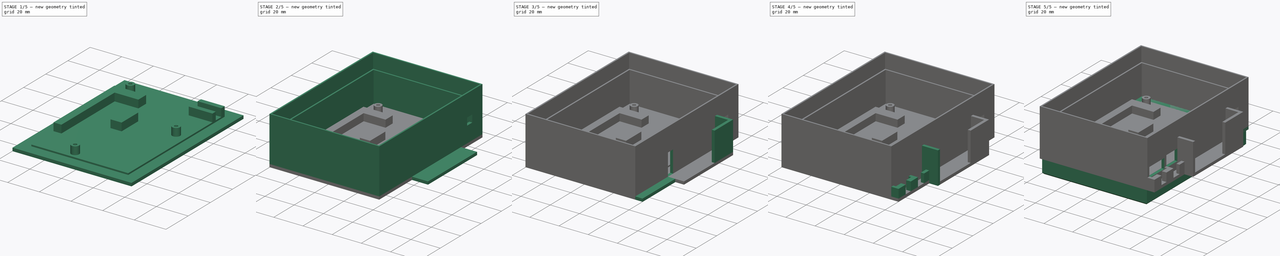
[diagram: build sequence overview — one tinted view per stage of 5, left to right]
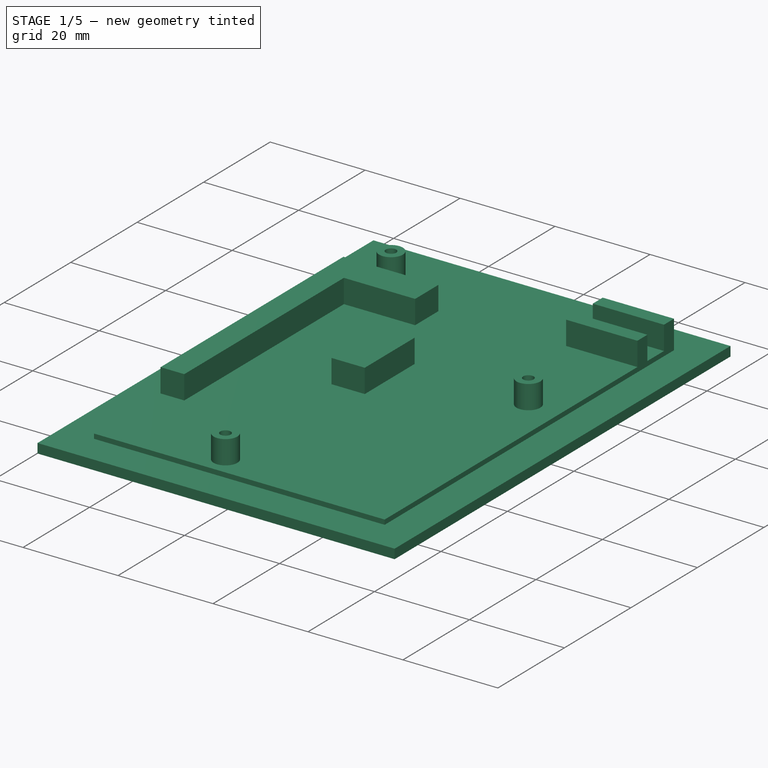
[diagram: stage 1 of 5 — iso view after this stage's code; geometry added in this stage tinted green]
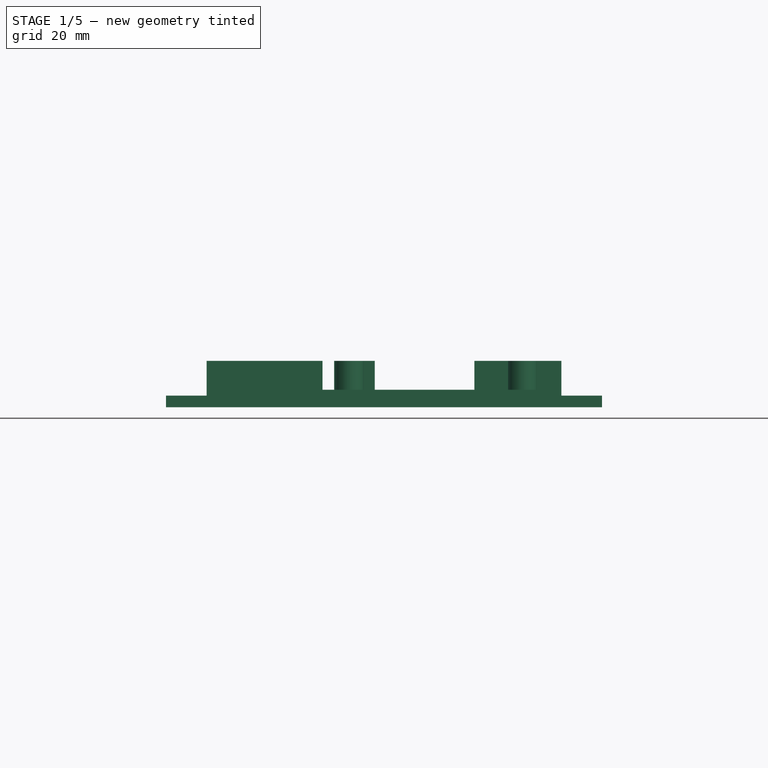
[diagram: stage 1 of 5 — front view after this stage's code; geometry added in this stage tinted green]
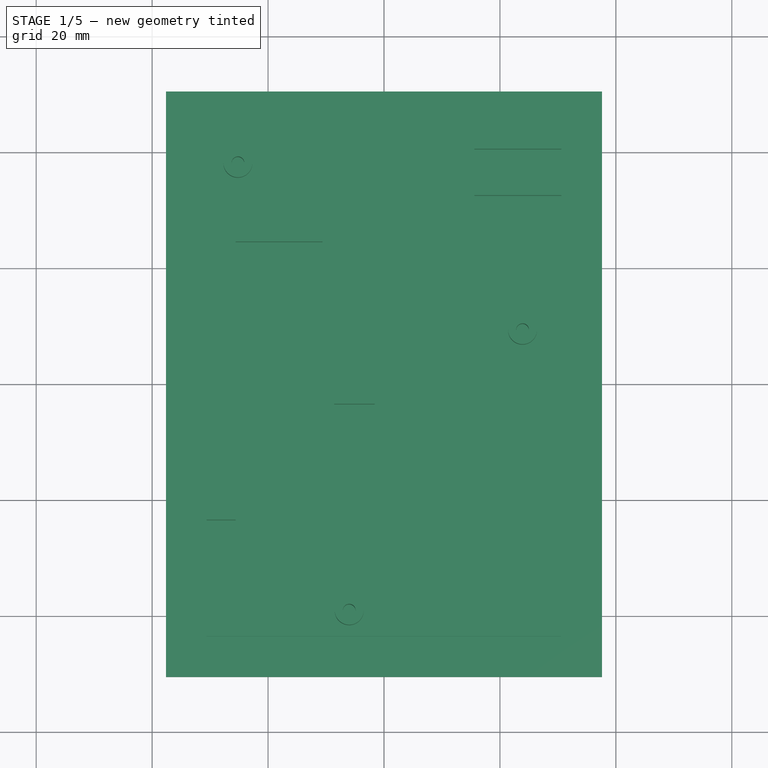
[diagram: stage 1 of 5 — top view after this stage's code; geometry added in this stage tinted green]
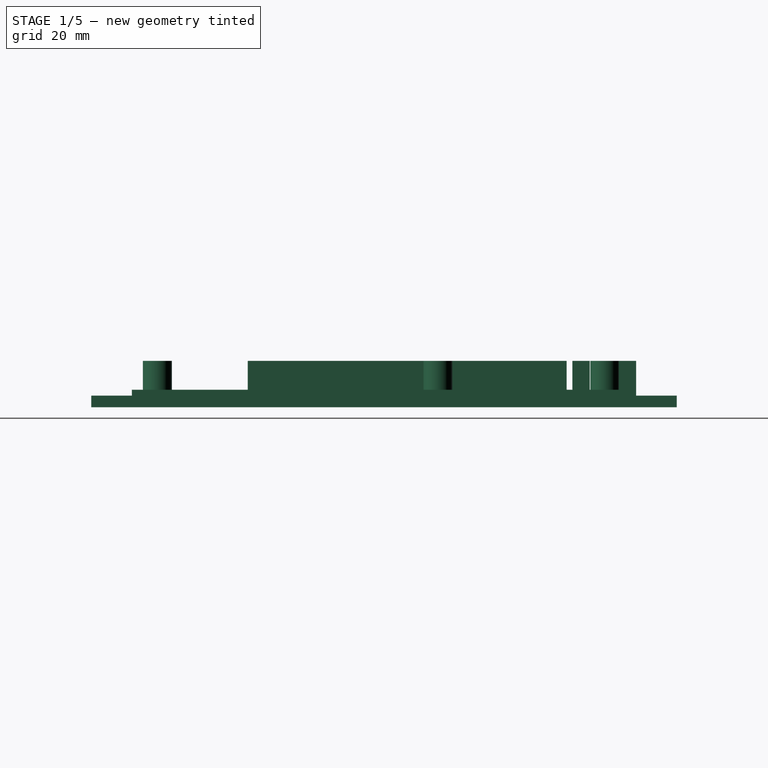
[diagram: stage 1 of 5 — right view after this stage's code; geometry added in this stage tinted green]
FCSTD DOCUMENT  (FreeCAD 0.18.4R)
Label: box-co2-hum-temp-tvoc
License: All rights reserved
LicenseURL: http://en.wikipedia.org/wiki/All_rights_reserved
objects: Sketcher::SketchObject×19, PartDesign::Pad×12, PartDesign::Pocket×7, PartDesign::Body×2, PartDesign::Chamfer×1
note: 60 computed .brp shape members not serialized (recipe doc carries the construction recipe); baked Part::Feature solids carry a one-line shape summary decoded from their .brp

FEATURE [Sketcher::SketchObject] Sketch018
  MapMode = 5
  Support = -> [XY_Plane002]
  sketch-geometry (4):
    g0: LineSegment StartX=-37.6 StartY=50.5 StartZ=0 EndX=37.6 EndY=50.5 EndZ=0
    g1: LineSegment StartX=37.6 StartY=50.5 StartZ=0 EndX=37.6 EndY=-50.5 EndZ=0
    g2: LineSegment StartX=37.6 StartY=-50.5 StartZ=0 EndX=-37.6 EndY=-50.5 EndZ=0
    g3: LineSegment StartX=-37.6 StartY=-50.5 StartZ=0 EndX=-37.6 EndY=50.5 EndZ=0
  constraints (11):
    c: Coincident(g0,g1)
    c: Coincident(g1,g2)
    c: Coincident(g2,g3)
    c: Coincident(g3,g0)
    c: Horizontal(g0)
    c: Horizontal(g2)
    c: Vertical(g1)
    c: Vertical(g3)
    c: DistanceY(g1,g1) = 101
    c: DistanceX(g0,g0) = 75.2
    c: Symmetric(g2,g0,g-1)
FEATURE [PartDesign::Pad] Pad009
  Length = 2
  Length2 = 100
  Profile = -> Sketch018
  Type = 0
FEATURE [Sketcher::SketchObject] Sketch019
  MapMode = 5
  Placement = pos=(0,0,2) rot=(0,0,1;0rad)
  Support = -> [Pad009]
  sketch-geometry (4):
    g0: LineSegment StartX=-30.6 StartY=43.5 StartZ=0 EndX=30.6 EndY=43.5 EndZ=0
    g1: LineSegment StartX=30.6 StartY=43.5 StartZ=0 EndX=30.6 EndY=-43.5 EndZ=0
    g2: LineSegment StartX=30.6 StartY=-43.5 StartZ=0 EndX=-30.6 EndY=-43.5 EndZ=0
    g3: LineSegment StartX=-30.6 StartY=-43.5 StartZ=0 EndX=-30.6 EndY=43.5 EndZ=0
  constraints (11):
    c: Coincident(g0,g1)
    c: Coincident(g1,g2)
    c: Coincident(g2,g3)
    c: Coincident(g3,g0)
    c: Horizontal(g0)
    c: Horizontal(g2)
    c: Vertical(g1)
    c: Vertical(g3)
    c: Symmetric(g2,g0,g-1)
    c: DistanceY(g1,g1) = 87
    c: DistanceX(g0,g0) = 61.2
FEATURE [PartDesign::Pad] Pad010
  BaseFeature = -> Pad009
  Length = 1
  Length2 = 100
  Profile = -> Sketch019
  Type = 0
FEATURE [Sketcher::SketchObject] Sketch020
  ExternalGeometry = -> [Pad010]
  MapMode = 5
  Placement = pos=(0,0,3) rot=(0,0,1;0rad)
  Support = -> [Pad010]
  sketch-geometry (21):
    g0: Circle CenterX=-25.2 CenterY=38.1 CenterZ=0 NormalX=0 NormalY=0 NormalZ=1 AngleXU=0 Radius=2.5
    g1: LineSegment StartX=15.6 StartY=43.5 StartZ=0 EndX=30.6 EndY=43.5 EndZ=0
    g2: LineSegment StartX=30.6 StartY=43.5 StartZ=0 EndX=30.6 EndY=40.5 EndZ=0
    g3: LineSegment StartX=30.6 StartY=40.5 StartZ=0 EndX=15.6 EndY=40.5 EndZ=0
    g4: LineSegment StartX=15.6 StartY=40.5 StartZ=0 EndX=15.6 EndY=43.5 EndZ=0
    g5: LineSegment StartX=15.6 StartY=35.5 StartZ=0 EndX=30.6 EndY=35.5 EndZ=0
    g6: LineSegment StartX=30.6 StartY=35.5 StartZ=0 EndX=30.6 EndY=32.5 EndZ=0
    g7: LineSegment StartX=30.6 StartY=32.5 StartZ=0 EndX=15.6 EndY=32.5 EndZ=0
    g8: LineSegment StartX=15.6 StartY=32.5 StartZ=0 EndX=15.6 EndY=35.5 EndZ=0
    g9: LineSegment StartX=-8.6 StartY=11.5 StartZ=0 EndX=-1.6 EndY=11.5 EndZ=0
    g10: LineSegment StartX=-1.6 StartY=11.5 StartZ=0 EndX=-1.6 EndY=-3.5 EndZ=0
    g11: LineSegment StartX=-1.6 StartY=-3.5 StartZ=0 EndX=-8.6 EndY=-3.5 EndZ=0
    g12: LineSegment StartX=-8.6 StartY=-3.5 StartZ=0 EndX=-8.6 EndY=11.5 EndZ=0
    g13: Circle CenterX=23.9 CenterY=9.3 CenterZ=0 NormalX=0 NormalY=0 NormalZ=1 AngleXU=0 Radius=2.5
    g14: LineSegment StartX=-30.6 StartY=-23.5 StartZ=0 EndX=-30.6 EndY=31.5 EndZ=0
    g15: LineSegment StartX=-30.6 StartY=31.5 StartZ=0 EndX=-10.6 EndY=31.5 EndZ=0
    g16: LineSegment StartX=-10.6 StartY=31.5 StartZ=0 EndX=-10.6 EndY=24.5 EndZ=0
    g17: LineSegment StartX=-10.6 StartY=24.5 StartZ=0 EndX=-25.6 EndY=24.5 EndZ=0
    g18: LineSegment StartX=-25.6 StartY=24.5 StartZ=0 EndX=-25.6 EndY=-23.5 EndZ=0
    g19: LineSegment StartX=-25.6 StartY=-23.5 StartZ=0 EndX=-30.6 EndY=-23.5 EndZ=0
    g20: Circle CenterX=-6 CenterY=-39.1 CenterZ=0 NormalX=0 NormalY=0 NormalZ=1 AngleXU=0 Radius=2.5
  constraints (62):
    c: Coincident(g1,g2)
    c: Coincident(g2,g3)
    c: Coincident(g3,g4)
    c: Coincident(g4,g1)
    c: Horizontal(g1)
    c: Horizontal(g3)
    c: Vertical(g2)
    c: Vertical(g4)
    c: Coincident(g5,g6)
    c: Coincident(g6,g7)
    c: Coincident(g7,g8)
    c: Coincident(g8,g5)
    c: Horizontal(g5)
    c: Horizontal(g7)
    c: Vertical(g6)
    c: Vertical(g8)
    c: Coincident(g9,g10)
    c: Coincident(g10,g11)
    c: Coincident(g11,g12)
    c: Coincident(g12,g9)
    c: Horizontal(g9)
    c: Horizontal(g11)
    c: Vertical(g10)
    c: Vertical(g12)
    c: Vertical(g14)
    c: Coincident(g14,g15)
    c: Horizontal(g15)
    c: Coincident(g15,g16)
    c: Vertical(g16)
    c: Coincident(g16,g17)
    c: Horizontal(g17)
    c: Coincident(g17,g18)
    c: Vertical(g18)
    c: Coincident(g18,g19)
    c: Coincident(g19,g14)
    c: Horizontal(g19)
    c: Coincident(g1,g-4)
    c: PointOnObject(g5,g-4)
    c: DistanceX(g1,g1) = 15
    c: DistanceX(g5,g5) = 15
    c: DistanceY(g2,g2) = 3
    c: DistanceY(g6,g6) = 3
    c: DistanceY(g5,g1) = 8
    c: Diameter(g0) = 5
    c: DistanceY(g0,g-3) = 5.4
    c: DistanceX(g-3,g0) = 5.4
    c: PointOnObject(g14,g-5)
    c: DistanceX(g15,g15) = 20
    c: DistanceY(g16,g16) = 7
    c: DistanceX(g19,g19) = 5
    c: DistanceY(g14,g-5) = 12
    c: DistanceX(g9,g9) = 7
    c: DistanceX(g-5,g9) = 22
    c: DistanceY(g10,g10) = 15
    c: DistanceY(g9,g-5) = 32
    c: Diameter(g13) = 5
    c: DistanceX(g-5,g13) = 54.5
    c: DistanceY(g13,g-5) = 34.2
    c: DistanceY(g14,g14) = 55
    c: Diameter(g20) = 5
    c: DistanceX(g-5,g20) = 24.6
    c: DistanceY(g20,g-5) = 82.6
FEATURE [PartDesign::Pad] Pad011
  BaseFeature = -> Pad010
  Length = 5
  Length2 = 100
  Profile = -> Sketch020
  Type = 0
FEATURE [Sketcher::SketchObject] Sketch021
  ExternalGeometry = -> [Pad011]
  MapMode = 5
  Placement = pos=(0,0,8) rot=(0,0,1;0rad)
  Support = -> [Pad011]
  sketch-geometry (3):
    g0: Circle CenterX=-6 CenterY=-39.1 CenterZ=0 NormalX=0 NormalY=0 NormalZ=1 AngleXU=0 Radius=1.1
    g1: Circle CenterX=-25.2 CenterY=38.1 CenterZ=0 NormalX=0 NormalY=0 NormalZ=1 AngleXU=0 Radius=1.1
    g2: Circle CenterX=23.9 CenterY=9.3 CenterZ=0 NormalX=0 NormalY=0 NormalZ=1 AngleXU=0 Radius=1.1
  constraints (6):
    c: Coincident(g0,g-4)
    c: Coincident(g1,g-3)
    c: Coincident(g2,g-5)
    c: Diameter(g2) = 2.2
    c: Diameter(g0) = 2.2
    c: Diameter(g1) = 2.2
FEATURE [PartDesign::Pocket] Pocket006
  BaseFeature = -> Pad011
  Length = 7
  Length2 = 100
  Profile = -> Sketch021
  Type = 0
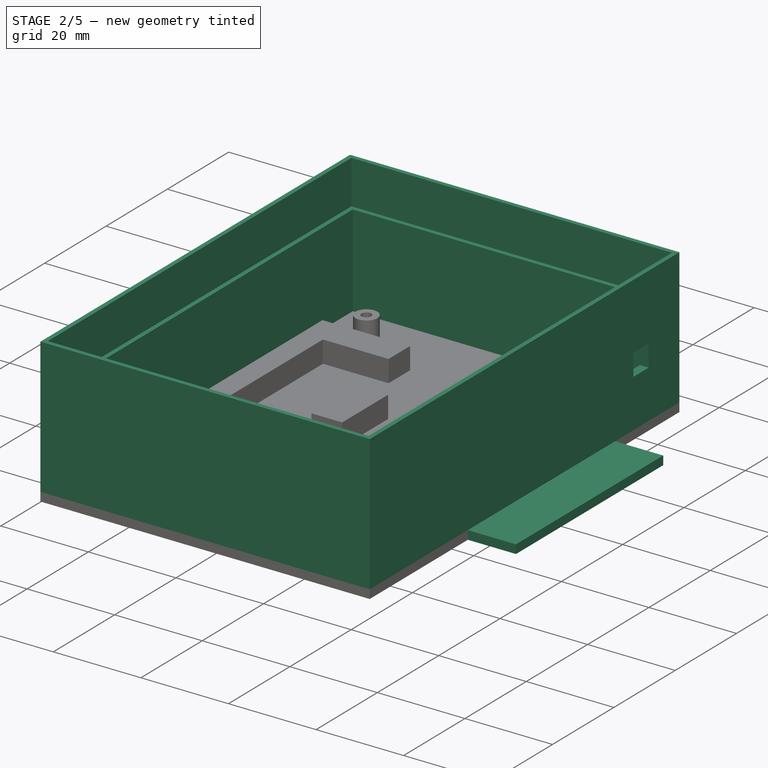
[diagram: stage 2 of 5 — iso view after this stage's code; geometry added in this stage tinted green]
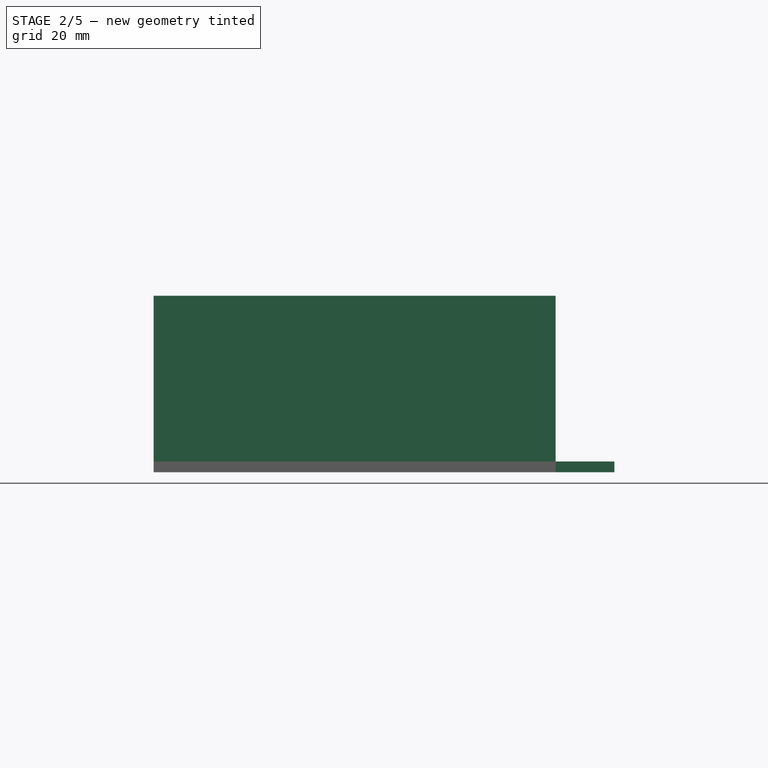
[diagram: stage 2 of 5 — front view after this stage's code; geometry added in this stage tinted green]
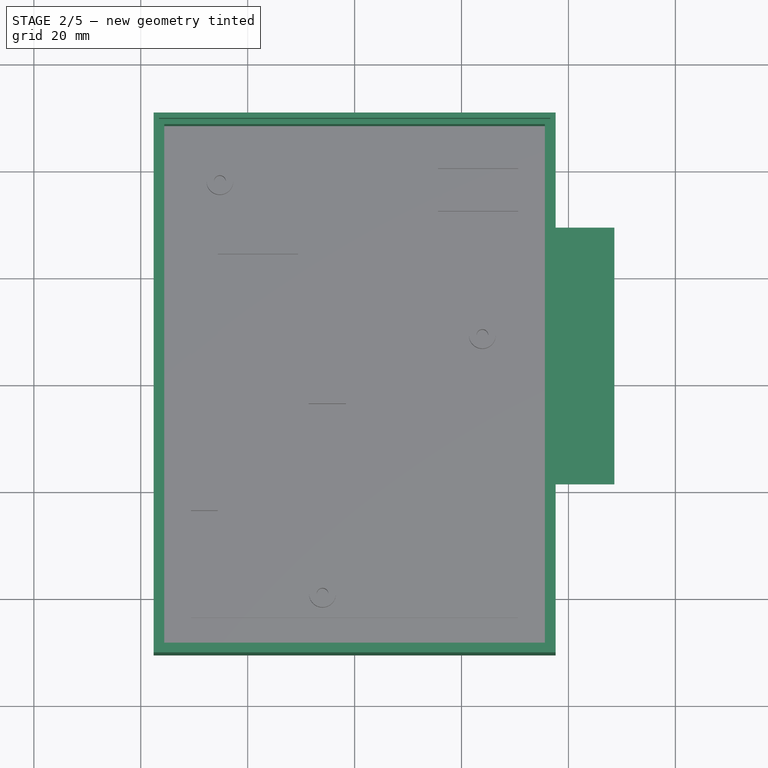
[diagram: stage 2 of 5 — top view after this stage's code; geometry added in this stage tinted green]
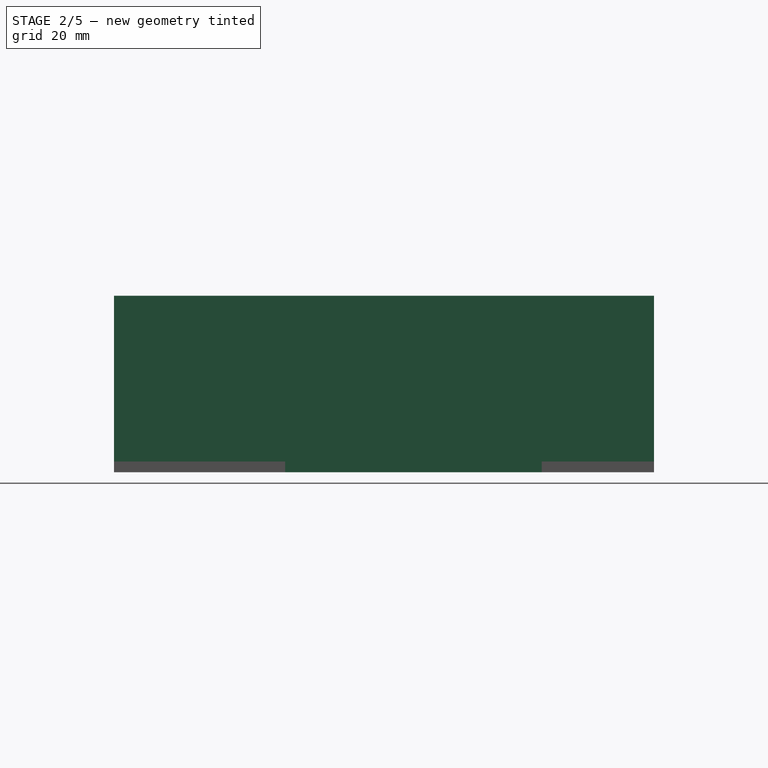
[diagram: stage 2 of 5 — right view after this stage's code; geometry added in this stage tinted green]
FEATURE [Sketcher::SketchObject] Sketch022
  ExternalGeometry = -> [Pocket006]
  MapMode = 5
  Placement = pos=(0,0,2) rot=(0,0,1;0rad)
  Support = -> [Pocket006]
  sketch-geometry (8):
    g0: LineSegment StartX=-37.6 StartY=50.5 StartZ=0 EndX=37.6 EndY=50.5 EndZ=0
    g1: LineSegment StartX=37.6 StartY=50.5 StartZ=0 EndX=37.6 EndY=-50.5 EndZ=0
    g2: LineSegment StartX=37.6 StartY=-50.5 StartZ=0 EndX=-37.6 EndY=-50.5 EndZ=0
    g3: LineSegment StartX=-37.6 StartY=-50.5 StartZ=0 EndX=-37.6 EndY=50.5 EndZ=0
    g4: LineSegment StartX=-35.6 StartY=48.5 StartZ=0 EndX=35.6 EndY=48.5 EndZ=0
    g5: LineSegment StartX=35.6 StartY=48.5 StartZ=0 EndX=35.6 EndY=-48.5 EndZ=0
    g6: LineSegment StartX=35.6 StartY=-48.5 StartZ=0 EndX=-35.6 EndY=-48.5 EndZ=0
    g7: LineSegment StartX=-35.6 StartY=-48.5 StartZ=0 EndX=-35.6 EndY=48.5 EndZ=0
  constraints (22):
    c: Coincident(g0,g1)
    c: Coincident(g1,g2)
    c: Coincident(g2,g3)
    c: Coincident(g3,g0)
    c: Horizontal(g0)
    c: Horizontal(g2)
    c: Vertical(g1)
    c: Vertical(g3)
    c: Coincident(g0,g-3)
    c: Coincident(g1,g-4)
    c: Coincident(g4,g5)
    c: Coincident(g5,g6)
    c: Coincident(g6,g7)
    c: Coincident(g7,g4)
    c: Horizontal(g4)
    c: Horizontal(g6)
    c: Vertical(g5)
    c: Vertical(g7)
    c: DistanceX(g0,g4) = 2
    c: DistanceX(g5,g1) = 2
    c: DistanceY(g4,g0) = 2
    c: DistanceY(g1,g5) = 2
FEATURE [PartDesign::Pad] Pad012
  BaseFeature = -> Pocket006
  Length = 31
  Length2 = 100
  Profile = -> Sketch022
  Type = 0
FEATURE [Sketcher::SketchObject] Sketch023
  ExternalGeometry = -> [Pad012]
  MapMode = 5
  Placement = pos=(37.6,0,0) rot=(0.57735,0.57735,0.57735;2.0944rad)
  Support = -> [Pad012]
  sketch-geometry (4):
    g0: LineSegment StartX=35.5 StartY=18 StartZ=0 EndX=40.5 EndY=18 EndZ=0
    g1: LineSegment StartX=40.5 StartY=18 StartZ=0 EndX=40.5 EndY=13 EndZ=0
    g2: LineSegment StartX=40.5 StartY=13 StartZ=0 EndX=35.5 EndY=13 EndZ=0
    g3: LineSegment StartX=35.5 StartY=13 StartZ=0 EndX=35.5 EndY=18 EndZ=0
  constraints (12):
    c: Coincident(g0,g1)
    c: Coincident(g1,g2)
    c: Coincident(g2,g3)
    c: Coincident(g3,g0)
    c: Horizontal(g0)
    c: Horizontal(g2)
    c: Vertical(g1)
    c: Vertical(g3)
    c: DistanceX(g0,g0) = 5
    c: DistanceY(g1,g1) = 5
    c: DistanceX(g0,g-3) = 10
    c: DistanceY(g0,g-3) = 15
FEATURE [PartDesign::Pocket] Pocket007
  BaseFeature = -> Pad012
  Length = 2
  Length2 = 100
  Profile = -> Sketch023
  Type = 0
FEATURE [PartDesign::Body] Body  label="cup"
  Group = -> [Sketch,Pad,Sketch041,Pad020,Chamfer]
  Origin = -> Origin
  Placement = pos=(0,0,33) rot=(0,0,1;0rad)
  Tip = -> Chamfer
FEATURE [Sketcher::SketchObject] Sketch042
  ExternalGeometry = -> [Pocket007]
  MapMode = 5
  Placement = pos=(0,0,33) rot=(0,0,1;0rad)
  Support = -> [Pocket007]
  sketch-geometry (4):
    g0: LineSegment StartX=-36.6 StartY=49.5 StartZ=0 EndX=36.6 EndY=49.5 EndZ=0
    g1: LineSegment StartX=36.6 StartY=49.5 StartZ=0 EndX=36.6 EndY=-49.5 EndZ=0
    g2: LineSegment StartX=36.6 StartY=-49.5 StartZ=0 EndX=-36.6 EndY=-49.5 EndZ=0
    g3: LineSegment StartX=-36.6 StartY=-49.5 StartZ=0 EndX=-36.6 EndY=49.5 EndZ=0
  constraints (12):
    c: Coincident(g0,g1)
    c: Coincident(g1,g2)
    c: Coincident(g2,g3)
    c: Coincident(g3,g0)
    c: Horizontal(g0)
    c: Horizontal(g2)
    c: Vertical(g1)
    c: Vertical(g3)
    c: DistanceY(g-4,g1) = 1
    c: DistanceX(g1,g-4) = 1
    c: DistanceX(g-3,g0) = 1
    c: DistanceY(g0,g-3) = 1
FEATURE [PartDesign::Pocket] Pocket
  BaseFeature = -> Pocket007
  Length = 10
  Length2 = 100
  Profile = -> Sketch042
  Type = 0
FEATURE [Sketcher::SketchObject] Sketch043
  ExternalGeometry = -> [Pocket]
  MapMode = 5
  Placement = pos=(37.6,0,0) rot=(0.57735,0.57735,0.57735;2.0944rad)
  Support = -> [Pocket]
  sketch-geometry (4):
    g0: LineSegment StartX=29.5 StartY=0 StartZ=0 EndX=-18.5 EndY=0 EndZ=0
    g1: LineSegment StartX=-18.5 StartY=0 StartZ=0 EndX=-18.5 EndY=2 EndZ=0
    g2: LineSegment StartX=-18.5 StartY=2 StartZ=0 EndX=29.5 EndY=2 EndZ=0
    g3: LineSegment StartX=29.5 StartY=2 StartZ=0 EndX=29.5 EndY=0 EndZ=0
  constraints (12):
    c: Coincident(g0,g1)
    c: Coincident(g1,g2)
    c: Coincident(g2,g3)
    c: Coincident(g3,g0)
    c: Horizontal(g0)
    c: Horizontal(g2)
    c: Vertical(g1)
    c: Vertical(g3)
    c: PointOnObject(g0,g-1)
    c: PointOnObject(g1,g-3)
    c: DistanceX(g2,g2) = 48
    c: DistanceX(g-3,g1) = 32
FEATURE [PartDesign::Pad] Pad021  label="co2"
  BaseFeature = -> Pocket
  Length = 11
  Length2 = 100
  Profile = -> Sketch043
  Type = 0
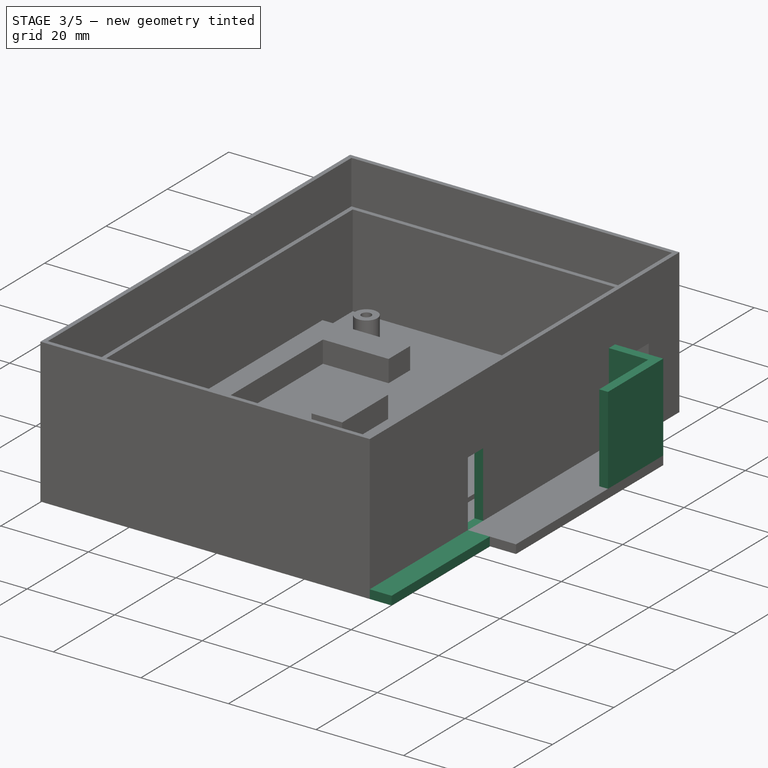
[diagram: stage 3 of 5 — iso view after this stage's code; geometry added in this stage tinted green]
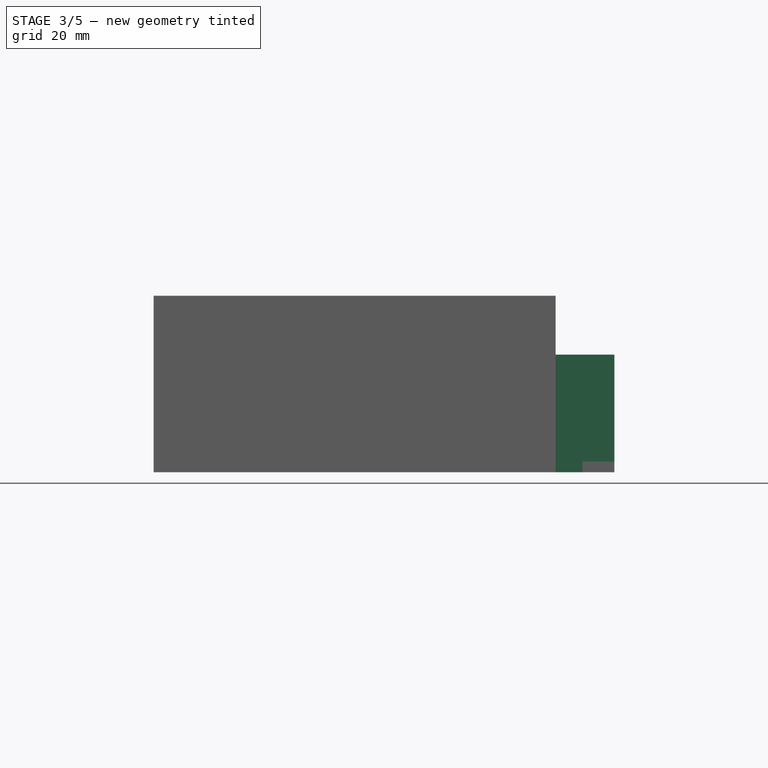
[diagram: stage 3 of 5 — front view after this stage's code; geometry added in this stage tinted green]
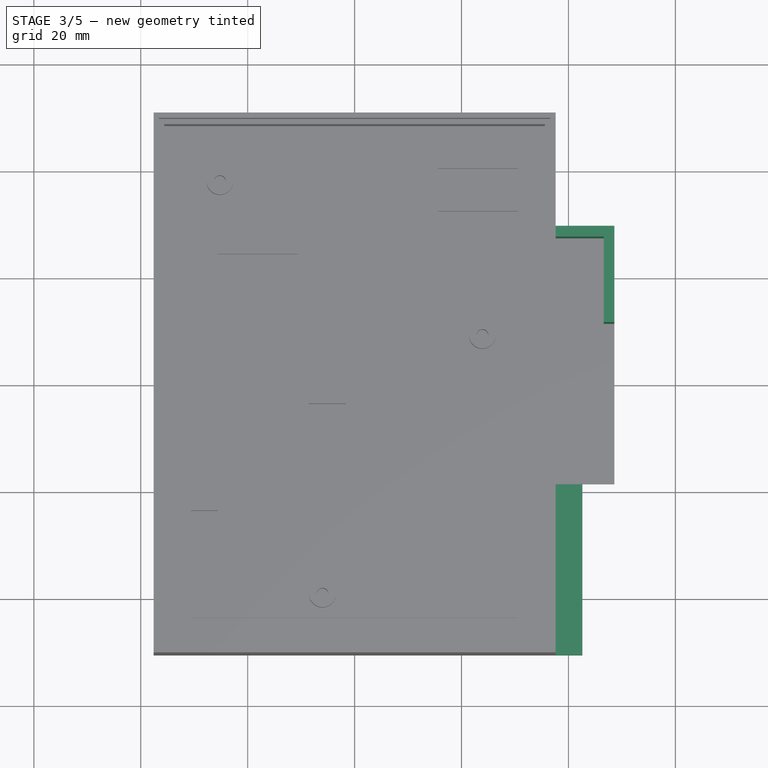
[diagram: stage 3 of 5 — top view after this stage's code; geometry added in this stage tinted green]
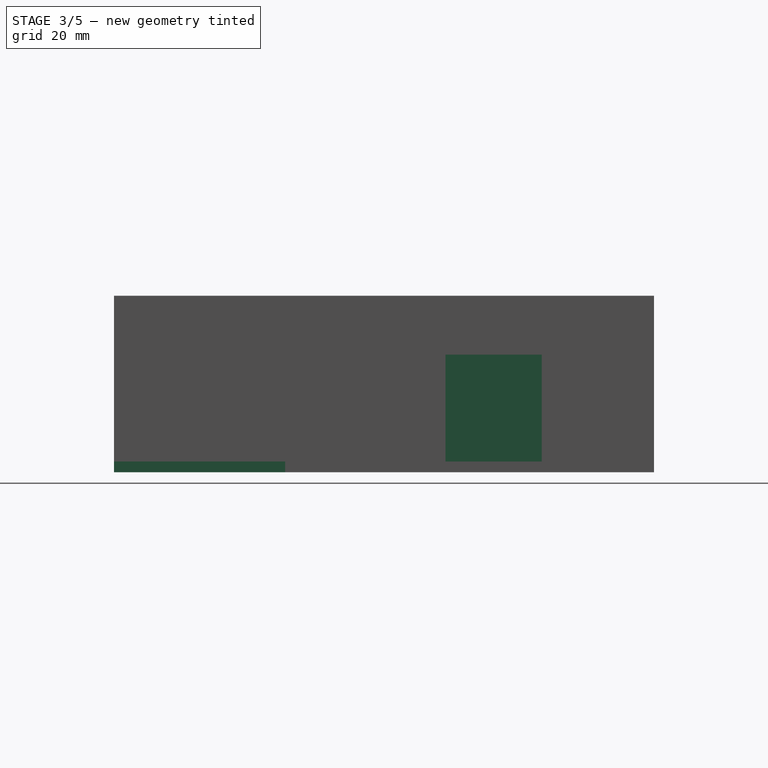
[diagram: stage 3 of 5 — right view after this stage's code; geometry added in this stage tinted green]
FEATURE [Sketcher::SketchObject] Sketch044
  ExternalGeometry = -> [Pad021]
  MapMode = 5
  Placement = pos=(0,0,2) rot=(0,0,1;0rad)
  Support = -> [Pad021]
  sketch-geometry (6):
    g0: LineSegment StartX=37.6 StartY=29.5 StartZ=0 EndX=48.6 EndY=29.5 EndZ=0
    g1: LineSegment StartX=48.6 StartY=29.5 StartZ=0 EndX=48.6 EndY=-18.5 EndZ=0
    g2: LineSegment StartX=48.6 StartY=-18.5 StartZ=0 EndX=46.6 EndY=-18.5 EndZ=0
    g3: LineSegment StartX=46.6 StartY=-18.5 StartZ=0 EndX=46.6 EndY=27.5 EndZ=0
    g4: LineSegment StartX=46.6 StartY=27.5 StartZ=0 EndX=37.6 EndY=27.5 EndZ=0
    g5: LineSegment StartX=37.6 StartY=27.5 StartZ=0 EndX=37.6 EndY=29.5 EndZ=0
  constraints (15):
    c: Coincident(g-3,g0)
    c: Coincident(g0,g-4)
    c: Coincident(g0,g1)
    c: Coincident(g1,g2)
    c: Horizontal(g2)
    c: Coincident(g2,g3)
    c: Vertical(g3)
    c: Coincident(g3,g4)
    c: Horizontal(g4)
    c: Coincident(g4,g5)
    c: Coincident(g5,g0)
    c: Vertical(g5)
    c: DistanceY(g5,g5) = 2
    c: DistanceX(g2,g2) = 2
    c: Coincident(g-5,g1)
FEATURE [PartDesign::Pad] Pad022
  BaseFeature = -> Pad021
  Length = 20
  Length2 = 100
  Profile = -> Sketch044
  Type = 0
FEATURE [Sketcher::SketchObject] Sketch045
  ExternalGeometry = -> [Pad022]
  MapMode = 5
  Placement = pos=(0,0,22) rot=(0,0,1;0rad)
  Support = -> [Pad022]
  sketch-geometry (4):
    g0: LineSegment StartX=48.6 StartY=-18.5 StartZ=0 EndX=46.6 EndY=-18.5 EndZ=0
    g1: LineSegment StartX=46.6 StartY=-18.5 StartZ=0 EndX=46.6 EndY=11.5 EndZ=0
    g2: LineSegment StartX=46.6 StartY=11.5 StartZ=0 EndX=48.6 EndY=11.5 EndZ=0
    g3: LineSegment StartX=48.6 StartY=11.5 StartZ=0 EndX=48.6 EndY=-18.5 EndZ=0
  constraints (11):
    c: Coincident(g0,g1)
    c: Coincident(g1,g2)
    c: Coincident(g2,g3)
    c: Coincident(g3,g0)
    c: Horizontal(g0)
    c: Horizontal(g2)
    c: Vertical(g1)
    c: Vertical(g3)
    c: Coincident(g0,g-4)
    c: PointOnObject(g1,g-3)
    c: DistanceY(g1,g-3) = 16
FEATURE [PartDesign::Pocket] Pocket008
  BaseFeature = -> Pad022
  Length = 20
  Length2 = 100
  Profile = -> Sketch045
  Type = 0
FEATURE [Sketcher::SketchObject] Sketch046
  ExternalGeometry = -> [Pocket008]
  MapMode = 5
  Placement = pos=(37.6,0,0) rot=(0.57735,0.57735,0.57735;2.0944rad)
  Support = -> [Pocket008]
  sketch-geometry (4):
    g0: LineSegment StartX=-18.5 StartY=2 StartZ=0 EndX=-13.5 EndY=2 EndZ=0
    g1: LineSegment StartX=-13.5 StartY=2 StartZ=0 EndX=-13.5 EndY=17 EndZ=0
    g2: LineSegment StartX=-13.5 StartY=17 StartZ=0 EndX=-18.5 EndY=17 EndZ=0
    g3: LineSegment StartX=-18.5 StartY=17 StartZ=0 EndX=-18.5 EndY=2 EndZ=0
  constraints (11):
    c: Coincident(g0,g1)
    c: Coincident(g1,g2)
    c: Coincident(g2,g3)
    c: Coincident(g3,g0)
    c: Horizontal(g0)
    c: Horizontal(g2)
    c: Vertical(g1)
    c: Vertical(g3)
    c: Coincident(g0,g-3)
    c: DistanceX(g2,g2) = 5
    c: DistanceY(g1,g1) = 15
FEATURE [PartDesign::Pocket] Pocket009
  BaseFeature = -> Pocket008
  Length = 2
  Length2 = 100
  Profile = -> Sketch046
  Type = 0
FEATURE [Sketcher::SketchObject] Sketch047
  ExternalGeometry = -> [Pocket009]
  MapMode = 5
  Placement = pos=(37.6,0,0) rot=(0.57735,0.57735,0.57735;2.0944rad)
  Support = -> [Pocket009]
  sketch-geometry (4):
    g0: LineSegment StartX=-50.5 StartY=2 StartZ=0 EndX=-18.5 EndY=2 EndZ=0
    g1: LineSegment StartX=-18.5 StartY=2 StartZ=0 EndX=-18.5 EndY=0 EndZ=0
    g2: LineSegment StartX=-18.5 StartY=0 StartZ=0 EndX=-50.5 EndY=0 EndZ=0
    g3: LineSegment StartX=-50.5 StartY=0 StartZ=0 EndX=-50.5 EndY=2 EndZ=0
  constraints (10):
    c: Coincident(g0,g1)
    c: Coincident(g1,g2)
    c: Coincident(g2,g3)
    c: Coincident(g3,g0)
    c: Horizontal(g0)
    c: Horizontal(g2)
    c: Vertical(g1)
    c: Vertical(g3)
    c: Coincident(g0,g-4)
    c: Coincident(g1,g-3)
FEATURE [PartDesign::Pad] Pad023  label="tvoc and temperature"
  BaseFeature = -> Pocket009
  Length = 5
  Length2 = 100
  Profile = -> Sketch047
  Type = 0
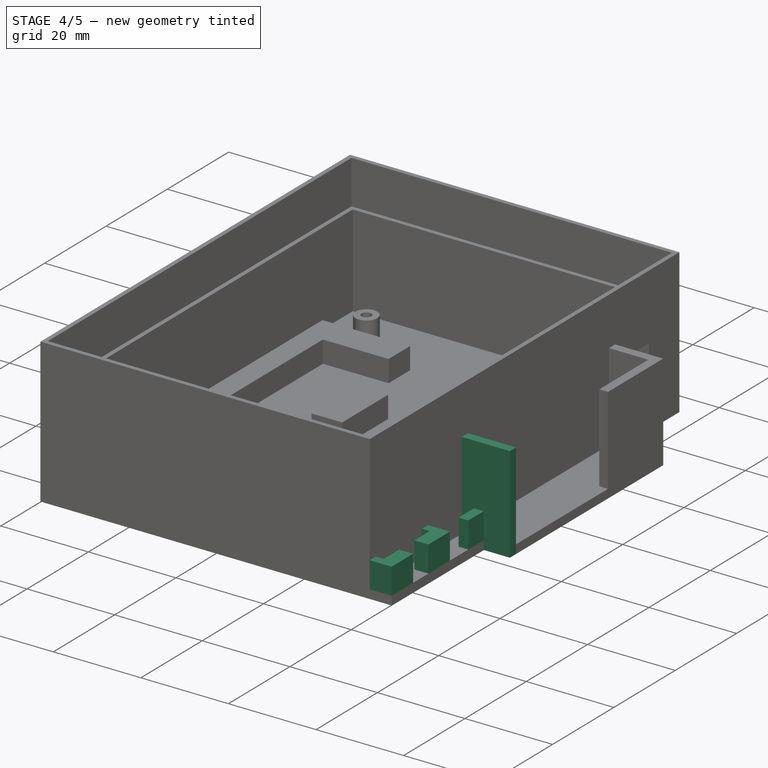
[diagram: stage 4 of 5 — iso view after this stage's code; geometry added in this stage tinted green]
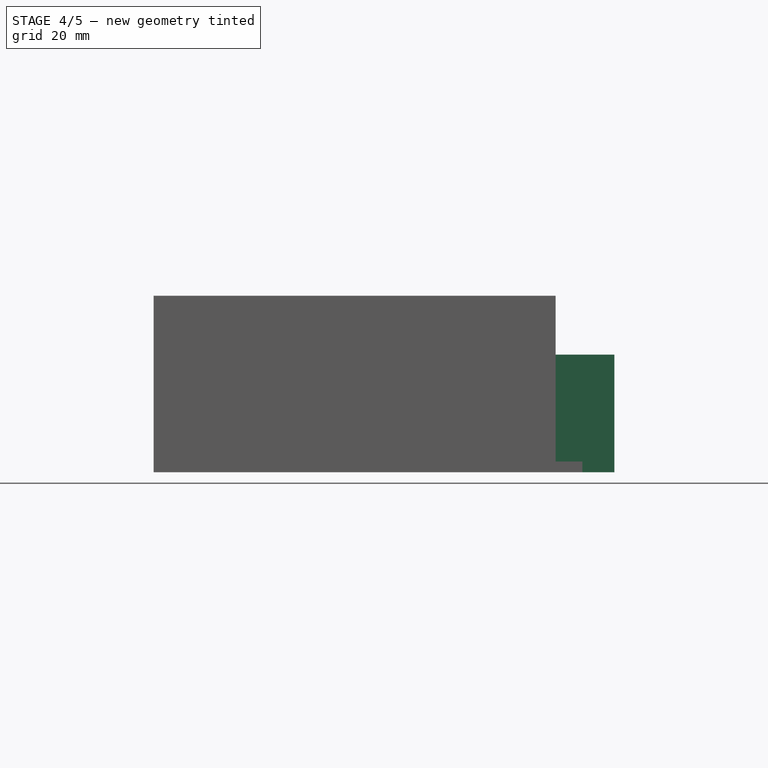
[diagram: stage 4 of 5 — front view after this stage's code; geometry added in this stage tinted green]
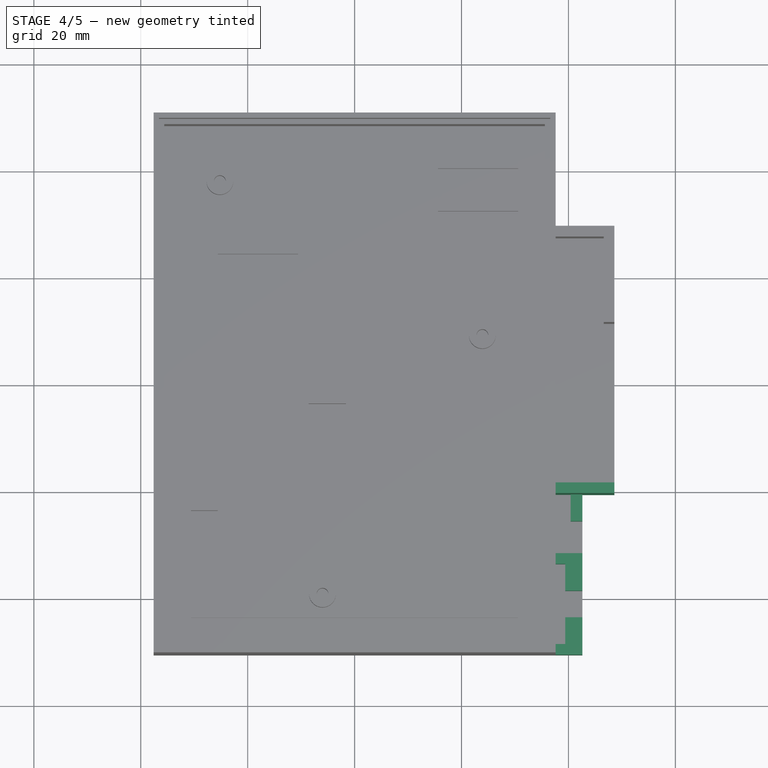
[diagram: stage 4 of 5 — top view after this stage's code; geometry added in this stage tinted green]
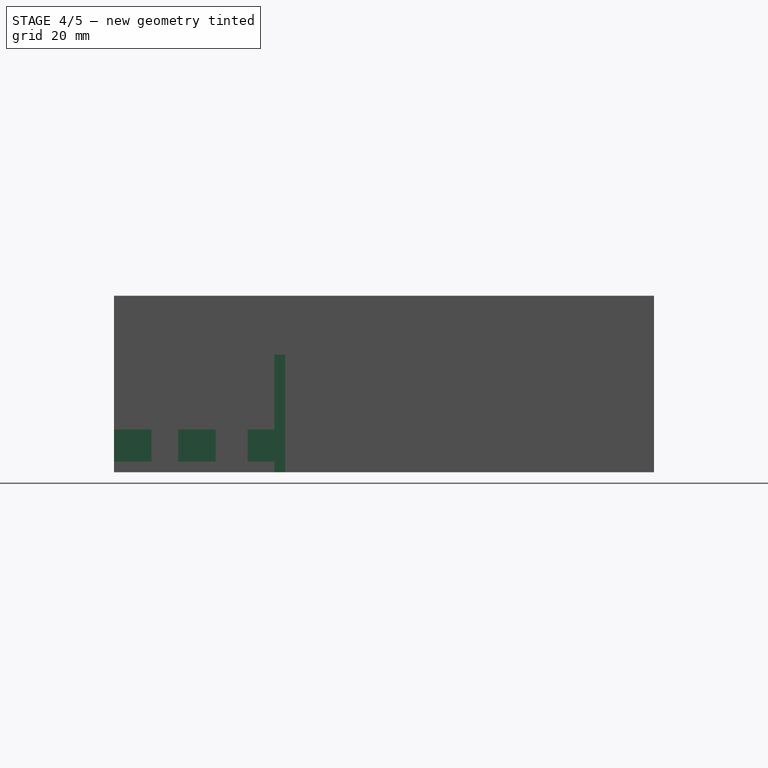
[diagram: stage 4 of 5 — right view after this stage's code; geometry added in this stage tinted green]
FEATURE [Sketcher::SketchObject] Sketch048
  ExternalGeometry = -> [Pad023]
  MapMode = 5
  Placement = pos=(42.6,0,0) rot=(0.57735,0.57735,0.57735;2.0944rad)
  Support = -> [Pad023]
  sketch-geometry (4):
    g0: LineSegment StartX=-18.5 StartY=2 StartZ=0 EndX=-20.5 EndY=2 EndZ=0
    g1: LineSegment StartX=-20.5 StartY=2 StartZ=0 EndX=-20.5 EndY=0 EndZ=0
    g2: LineSegment StartX=-20.5 StartY=0 StartZ=0 EndX=-18.5 EndY=0 EndZ=0
    g3: LineSegment StartX=-18.5 StartY=0 StartZ=0 EndX=-18.5 EndY=2 EndZ=0
  constraints (11):
    c: Coincident(g0,g1)
    c: Coincident(g1,g2)
    c: Coincident(g2,g3)
    c: Coincident(g3,g0)
    c: Horizontal(g0)
    c: Horizontal(g2)
    c: Vertical(g1)
    c: Vertical(g3)
    c: Coincident(g0,g-3)
    c: PointOnObject(g1,g-1)
    c: DistanceX(g0,g0) = 2
FEATURE [PartDesign::Pad] Pad024
  BaseFeature = -> Pad023
  Length = 6
  Length2 = 100
  Profile = -> Sketch048
  Type = 0
FEATURE [Sketcher::SketchObject] Sketch049
  ExternalGeometry = -> [Pad024]
  MapMode = 5
  Placement = pos=(0,0,2) rot=(0,0,1;0rad)
  Support = -> [Pad024]
  sketch-geometry (4):
    g0: LineSegment StartX=37.6 StartY=-18.5 StartZ=0 EndX=48.6 EndY=-18.5 EndZ=0
    g1: LineSegment StartX=48.6 StartY=-18.5 StartZ=0 EndX=48.6 EndY=-20.5 EndZ=0
    g2: LineSegment StartX=48.6 StartY=-20.5 StartZ=0 EndX=37.6 EndY=-20.5 EndZ=0
    g3: LineSegment StartX=37.6 StartY=-20.5 StartZ=0 EndX=37.6 EndY=-18.5 EndZ=0
  constraints (10):
    c: Coincident(g0,g1)
    c: Coincident(g1,g2)
    c: Coincident(g2,g3)
    c: Coincident(g3,g0)
    c: Horizontal(g0)
    c: Horizontal(g2)
    c: Vertical(g1)
    c: Vertical(g3)
    c: Coincident(g0,g-4)
    c: Coincident(g1,g-3)
FEATURE [PartDesign::Pad] Pad025
  BaseFeature = -> Pad024
  Length = 20
  Length2 = 100
  Profile = -> Sketch049
  Type = 0
FEATURE [Sketcher::SketchObject] Sketch050
  ExternalGeometry = -> [Pad025]
  MapMode = 5
  Placement = pos=(0,0,2) rot=(0,0,1;0rad)
  Support = -> [Pad025]
  sketch-geometry (10):
    g0: LineSegment StartX=37.6 StartY=-50.5 StartZ=0 EndX=42.6 EndY=-50.5 EndZ=0
    g1: LineSegment StartX=42.6 StartY=-50.5 StartZ=0 EndX=42.6 EndY=-20.5 EndZ=0
    g2: LineSegment StartX=42.6 StartY=-20.5 StartZ=0 EndX=40.4 EndY=-20.5 EndZ=0
    g3: LineSegment StartX=40.4 StartY=-20.5 StartZ=0 EndX=40.4 EndY=-31.5 EndZ=0
    g4: LineSegment StartX=40.4 StartY=-31.5 StartZ=0 EndX=37.6 EndY=-31.5 EndZ=0
    g5: LineSegment StartX=37.6 StartY=-31.5 StartZ=0 EndX=37.6 EndY=-33.5 EndZ=0
    g6: LineSegment StartX=37.6 StartY=-33.5 StartZ=0 EndX=39.4 EndY=-33.5 EndZ=0
    g7: LineSegment StartX=39.4 StartY=-33.5 StartZ=0 EndX=39.4 EndY=-48.5 EndZ=0
    g8: LineSegment StartX=39.4 StartY=-48.5 StartZ=0 EndX=37.6 EndY=-48.5 EndZ=0
    g9: LineSegment StartX=37.6 StartY=-48.5 StartZ=0 EndX=37.6 EndY=-50.5 EndZ=0
  constraints (29):
    c: Coincident(g-6,g0)
    c: Coincident(g0,g-4)
    c: Coincident(g0,g1)
    c: Coincident(g1,g-3)
    c: Coincident(g1,g2)
    c: PointOnObject(g2,g-5)
    c: Coincident(g2,g3)
    c: Vertical(g3)
    c: Coincident(g3,g4)
    c: PointOnObject(g4,g-6)
    c: Horizontal(g4)
    c: Coincident(g4,g5)
    c: PointOnObject(g5,g-6)
    c: Coincident(g5,g6)
    c: Horizontal(g6)
    c: Coincident(g6,g7)
    c: Vertical(g7)
    c: Coincident(g7,g8)
    c: PointOnObject(g8,g-6)
    c: Horizontal(g8)
    c: Coincident(g8,g9)
    c: Coincident(g9,g0)
    c: DistanceY(g5,g5) = 2
    c: DistanceY(g9,g9) = 2
    c: DistanceY(g5,g-6) = 13
    c: DistanceX(g2,g2) = 2.2
    c: DistanceX(g7,g0) = 3.2
    c: DistanceY(g0,g6) = 17
    c: DistanceY(g3,g3) = 11
FEATURE [PartDesign::Pad] Pad026
  BaseFeature = -> Pad025
  Length = 6
  Length2 = 100
  Profile = -> Sketch050
  Type = 0
FEATURE [Sketcher::SketchObject] Sketch051
  ExternalGeometry = -> [Pad026]
  MapMode = 5
  Placement = pos=(0,0,8) rot=(0,0,1;0rad)
  Support = -> [Pad026]
  sketch-geometry (8):
    g0: LineSegment StartX=40.4 StartY=-31.5 StartZ=0 EndX=42.6 EndY=-31.5 EndZ=0
    g1: LineSegment StartX=42.6 StartY=-31.5 StartZ=0 EndX=42.6 EndY=-25.5 EndZ=0
    g2: LineSegment StartX=42.6 StartY=-25.5 StartZ=0 EndX=40.4 EndY=-25.5 EndZ=0
    g3: LineSegment StartX=40.4 StartY=-25.5 StartZ=0 EndX=40.4 EndY=-31.5 EndZ=0
    g4: LineSegment StartX=39.4 StartY=-38.5 StartZ=0 EndX=42.6 EndY=-38.5 EndZ=0
    g5: LineSegment StartX=42.6 StartY=-38.5 StartZ=0 EndX=42.6 EndY=-43.5 EndZ=0
    g6: LineSegment StartX=42.6 StartY=-43.5 StartZ=0 EndX=39.4 EndY=-43.5 EndZ=0
    g7: LineSegment StartX=39.4 StartY=-43.5 StartZ=0 EndX=39.4 EndY=-38.5 EndZ=0
  constraints (25):
    c: Coincident(g0,g1)
    c: Coincident(g1,g2)
    c: Coincident(g2,g3)
    c: Coincident(g3,g0)
    c: Horizontal(g0)
    c: Horizontal(g2)
    c: Vertical(g1)
    c: Vertical(g3)
    c: Coincident(g0,g-3)
    c: PointOnObject(g1,g-5)
    c: Coincident(g4,g5)
    c: Coincident(g5,g6)
    c: Coincident(g6,g7)
    c: Coincident(g7,g4)
    c: Horizontal(g4)
    c: Horizontal(g6)
    c: Vertical(g5)
    c: Vertical(g7)
    c: PointOnObject(g4,g-4)
    c: PointOnObject(g5,g-5)
    c: DistanceY(g1,g1) = 6
    c: DistanceY(g5,g5) = 5
    c: DistanceY(g-4,g6) = 5
    c: DistanceY(g-4,g-4) = 15
    c: DistanceY(g0,g-3) = 11
FEATURE [PartDesign::Pocket] Pocket010
  BaseFeature = -> Pad026
  Length = 6
  Length2 = 100
  Profile = -> Sketch051
  Type = 0
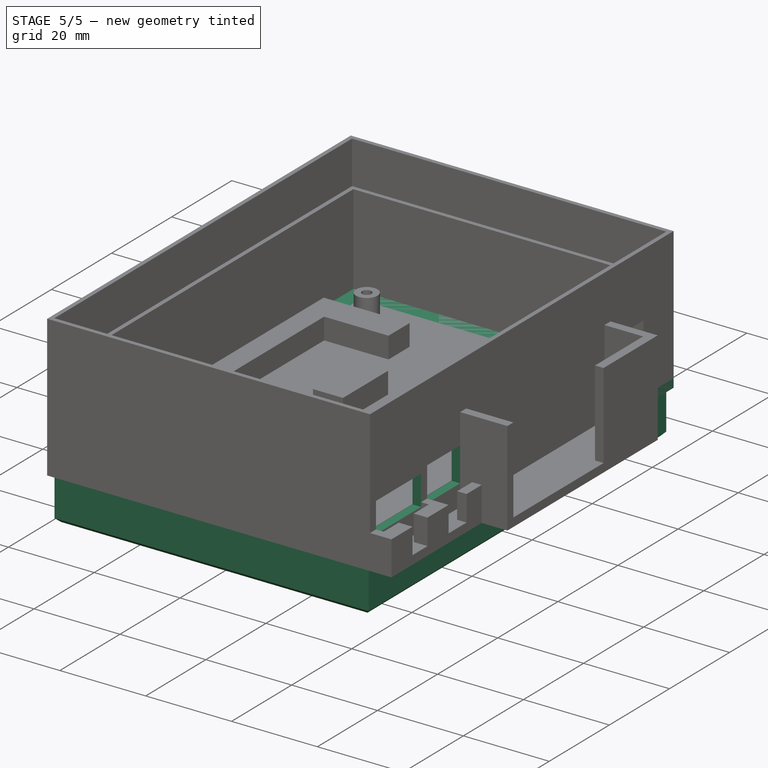
[diagram: stage 5 of 5 — iso view after this stage's code; geometry added in this stage tinted green]
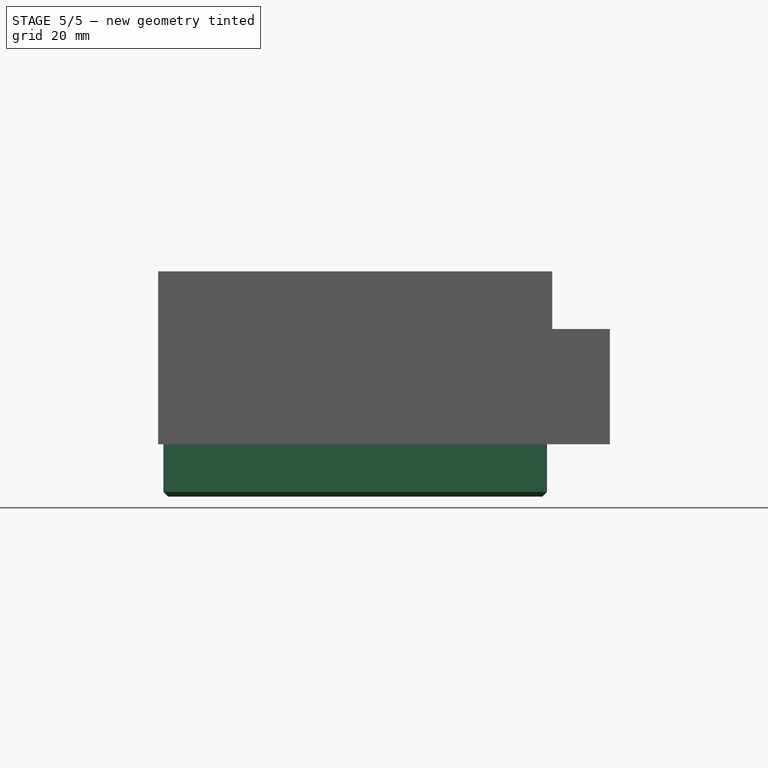
[diagram: stage 5 of 5 — front view after this stage's code; geometry added in this stage tinted green]
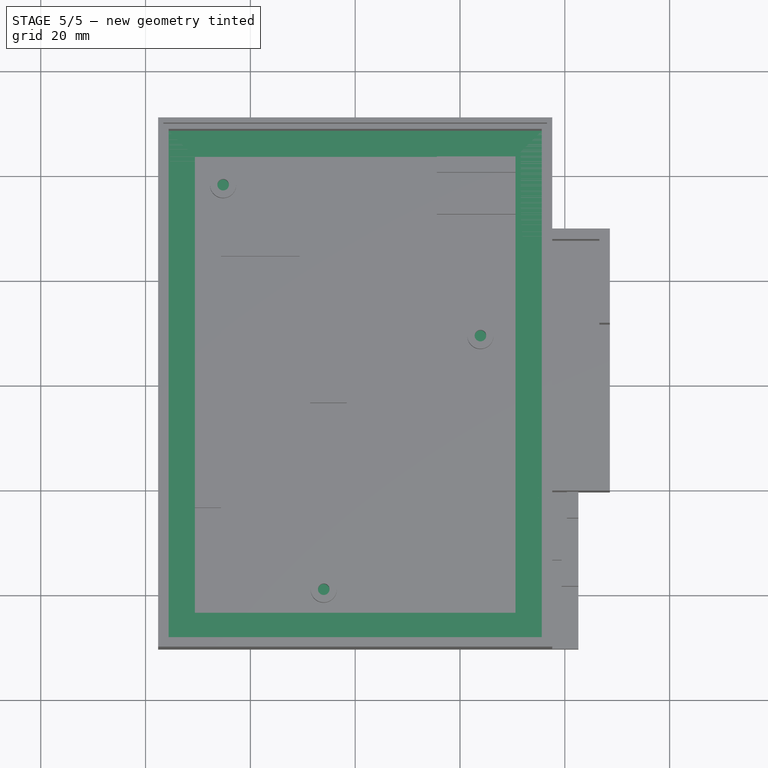
[diagram: stage 5 of 5 — top view after this stage's code; geometry added in this stage tinted green]
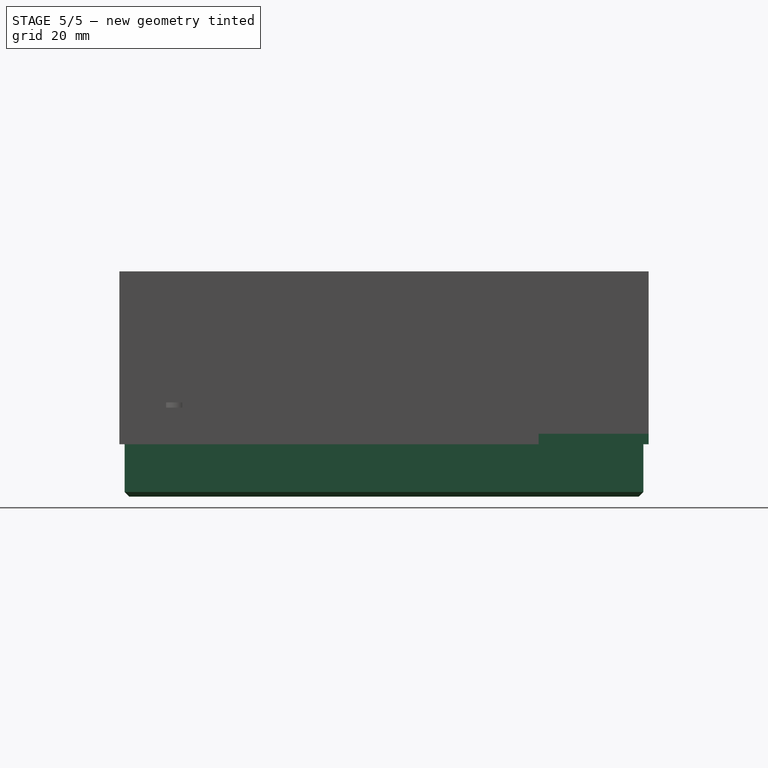
[diagram: stage 5 of 5 — right view after this stage's code; geometry added in this stage tinted green]
FEATURE [Sketcher::SketchObject] Sketch
  MapMode = 5
  Support = -> [XY_Plane]
  sketch-geometry (4):
    g0: LineSegment StartX=-37.6 StartY=50.5 StartZ=0 EndX=37.6 EndY=50.5 EndZ=0
    g1: LineSegment StartX=37.6 StartY=50.5 StartZ=0 EndX=37.6 EndY=-50.5 EndZ=0
    g2: LineSegment StartX=37.6 StartY=-50.5 StartZ=0 EndX=-37.6 EndY=-50.5 EndZ=0
    g3: LineSegment StartX=-37.6 StartY=-50.5 StartZ=0 EndX=-37.6 EndY=50.5 EndZ=0
  constraints (11):
    c: Coincident(g0,g1)
    c: Coincident(g1,g2)
    c: Coincident(g2,g3)
    c: Coincident(g3,g0)
    c: Horizontal(g0)
    c: Horizontal(g2)
    c: Vertical(g1)
    c: Vertical(g3)
    c: Symmetric(g1,g0,g-1)
    c: DistanceX(g0,g0) = 75.2
    c: DistanceY(g1,g1) = 101
FEATURE [PartDesign::Pad] Pad
  Length = 2
  Length2 = 100
  Profile = -> Sketch
  Type = 0
FEATURE [Sketcher::SketchObject] Sketch041
  ExternalGeometry = -> [Pad]
  MapMode = 5
  Placement = pos=(0,0,0) rot=(1,0,0;3.14159rad)
  Support = -> [Pad]
  sketch-geometry (8):
    g0: LineSegment StartX=-36.6 StartY=49.5 StartZ=0 EndX=36.6 EndY=49.5 EndZ=0
    g1: LineSegment StartX=36.6 StartY=49.5 StartZ=0 EndX=36.6 EndY=-49.5 EndZ=0
    g2: LineSegment StartX=36.6 StartY=-49.5 StartZ=0 EndX=-36.6 EndY=-49.5 EndZ=0
    g3: LineSegment StartX=-36.6 StartY=-49.5 StartZ=0 EndX=-36.6 EndY=49.5 EndZ=0
    g4: LineSegment StartX=-35.6 StartY=48.5 StartZ=0 EndX=35.6 EndY=48.5 EndZ=0
    g5: LineSegment StartX=35.6 StartY=48.5 StartZ=0 EndX=35.6 EndY=-48.5 EndZ=0
    g6: LineSegment StartX=35.6 StartY=-48.5 StartZ=0 EndX=-35.6 EndY=-48.5 EndZ=0
    g7: LineSegment StartX=-35.6 StartY=-48.5 StartZ=0 EndX=-35.6 EndY=48.5 EndZ=0
  constraints (24):
    c: Coincident(g0,g1)
    c: Coincident(g1,g2)
    c: Coincident(g2,g3)
    c: Coincident(g3,g0)
    c: Horizontal(g0)
    c: Horizontal(g2)
    c: Vertical(g1)
    c: Vertical(g3)
    c: Coincident(g4,g5)
    c: Coincident(g5,g6)
    c: Coincident(g6,g7)
    c: Coincident(g7,g4)
    c: Horizontal(g4)
    c: Horizontal(g6)
    c: Vertical(g5)
    c: Vertical(g7)
    c: DistanceX(g-3,g0) = 1
    c: DistanceX(g0,g4) = 1
    c: DistanceX(g1,g-4) = 1
    c: DistanceX(g5,g1) = 1
    c: DistanceY(g0,g-3) = 1
    c: DistanceY(g4,g0) = 1
    c: DistanceY(g-4,g1) = 1
    c: DistanceY(g1,g5) = 1
FEATURE [PartDesign::Pad] Pad020
  BaseFeature = -> Pad
  Length = 10
  Length2 = 100
  Profile = -> Sketch041
  Type = 0
FEATURE [PartDesign::Chamfer] Chamfer
  Base = -> Pad020 [Edge23,Edge24,Edge21,Edge19]
  BaseFeature = -> Pad020
  Size = 0.9
FEATURE [Sketcher::SketchObject] Sketch052
  ExternalGeometry = -> [Pocket010]
  MapMode = 5
  Placement = pos=(37.6,0,0) rot=(0.57735,0.57735,0.57735;2.0944rad)
  Support = -> [Pocket010]
  sketch-geometry (8):
    g0: LineSegment StartX=-48.5 StartY=14 StartZ=0 EndX=-33.5 EndY=14 EndZ=0
    g1: LineSegment StartX=-33.5 StartY=14 StartZ=0 EndX=-33.5 EndY=7 EndZ=0
    g2: LineSegment StartX=-33.5 StartY=7 StartZ=0 EndX=-48.5 EndY=7 EndZ=0
    g3: LineSegment StartX=-48.5 StartY=7 StartZ=0 EndX=-48.5 EndY=14 EndZ=0
    g4: LineSegment StartX=-31.5 StartY=15 StartZ=0 EndX=-20.5 EndY=15 EndZ=0
    g5: LineSegment StartX=-20.5 StartY=15 StartZ=0 EndX=-20.5 EndY=7 EndZ=0
    g6: LineSegment StartX=-20.5 StartY=7 StartZ=0 EndX=-31.5 EndY=7 EndZ=0
    g7: LineSegment StartX=-31.5 StartY=7 StartZ=0 EndX=-31.5 EndY=15 EndZ=0
  constraints (24):
    c: Coincident(g0,g1)
    c: Coincident(g1,g2)
    c: Coincident(g2,g3)
    c: Coincident(g3,g0)
    c: Horizontal(g0)
    c: Horizontal(g2)
    c: Vertical(g1)
    c: Vertical(g3)
    c: Coincident(g4,g5)
    c: Coincident(g5,g6)
    c: Coincident(g6,g7)
    c: Coincident(g7,g4)
    c: Horizontal(g4)
    c: Horizontal(g6)
    c: Vertical(g5)
    c: Vertical(g7)
    c: PointOnObject(g5,g-3)
    c: PointOnObject(g2,g-4)
    c: PointOnObject(g6,g-6)
    c: PointOnObject(g1,g-5)
    c: PointOnObject(g1,g6)
    c: DistanceY(g1,g1) = 7
    c: DistanceY(g-4,g0) = 12
    c: DistanceY(g-6,g4) = 13
FEATURE [PartDesign::Pocket] Pocket011
  BaseFeature = -> Pocket010
  Length = 2
  Length2 = 100
  Profile = -> Sketch052
  Type = 0
FEATURE [PartDesign::Body] Body002  label="box"
  Group = -> [Sketch018,Pad009,Sketch019,Pad010,Sketch020,Pad011,Sketch021,Pocket006,Sketch022,Pad012,Sketch023,Pocket007,Sketch042,Pocket,Sketch043,Pad021,Sketch044,Pad022,Sketch045,Pocket008,Sketch046,Pocket009,Sketch047,Pad023,Sketch048,Pad024,Sketch049,Pad025,Sketch050,Pad026,Sketch051,Pocket010,Sketch052,Pocket011]
  Origin = -> Origin002
  Tip = -> Pocket011
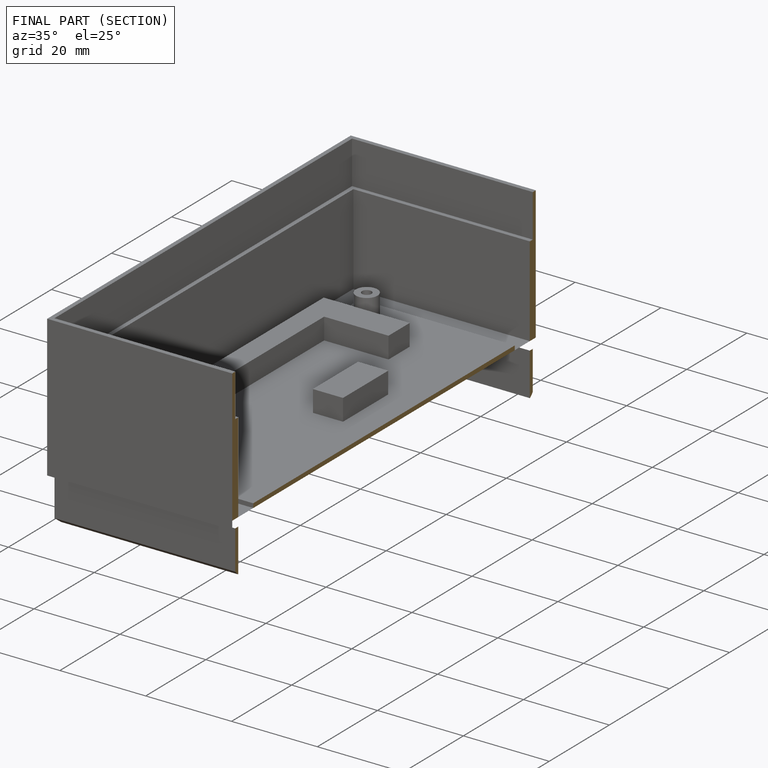
[diagram: finished part — half-section view (interior)]
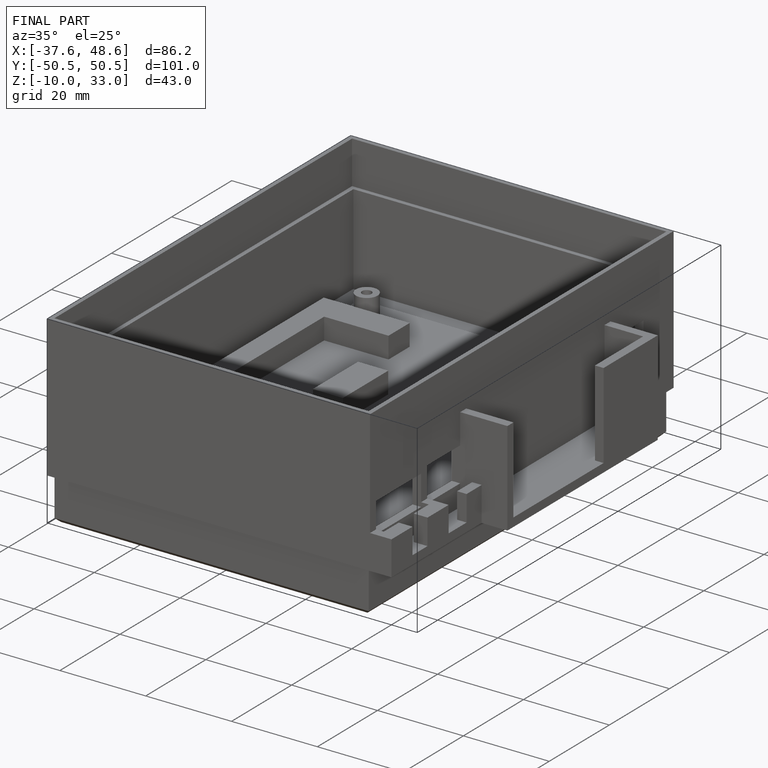
[diagram: finished part — iso view with bounding-box wireframe]
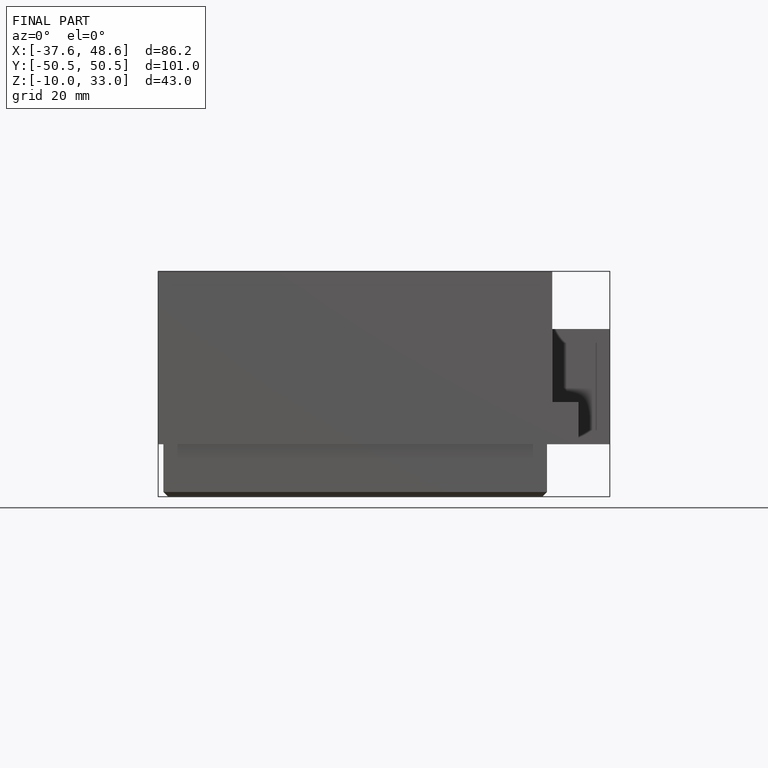
[diagram: finished part — front view with bounding-box wireframe]
